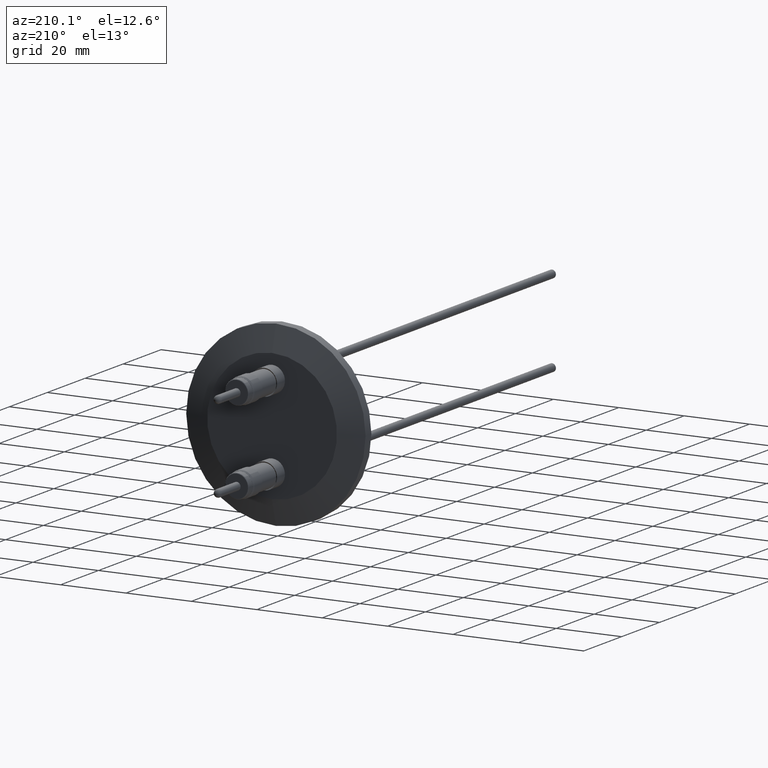
[diagram: clean part render]
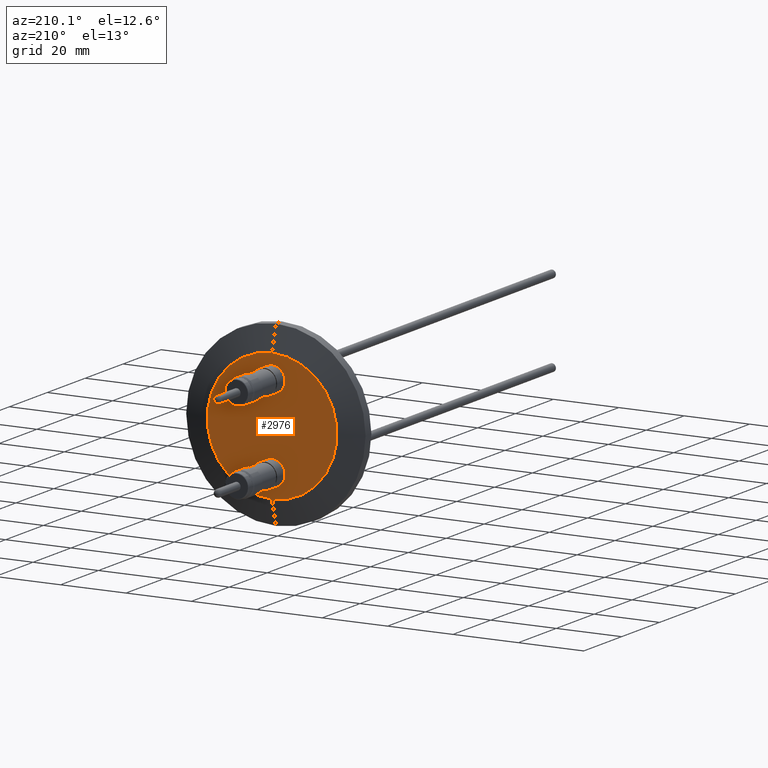
[diagram: same view with one face highlighted and labeled with its STEP entity id]
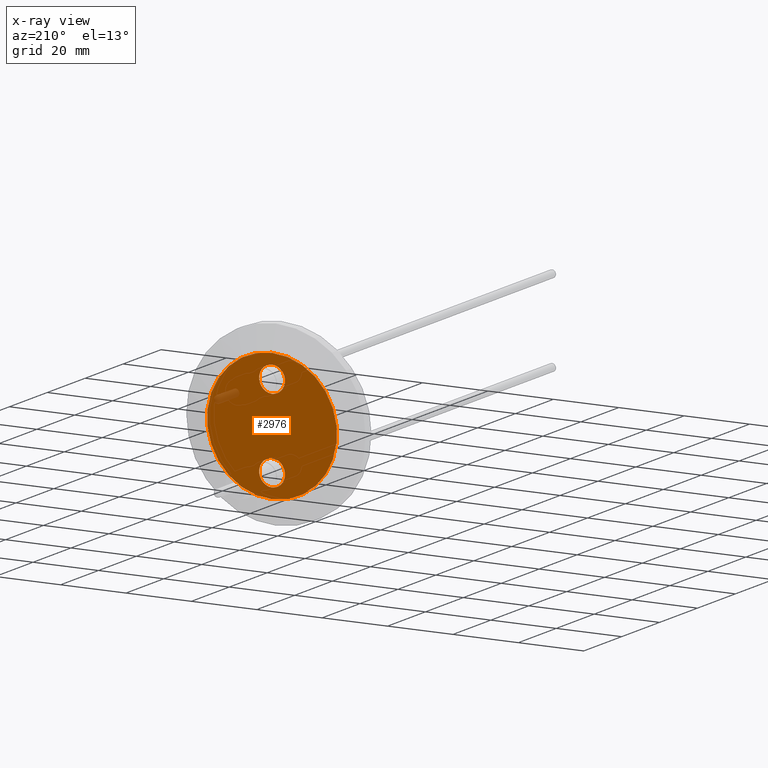
[diagram: x-ray of the same camera — body ghosted, the highlighted face saturated]
A machine part, auxiliary view. The second image highlights one B-rep face of the part: STEP entity #2976.
The next image is the same camera in x-ray: the body ghosted, the highlighted face saturated — about 2% of this face is hidden behind the body in this view.
In plain terms, the highlighted planar face has unit normal (-0, 1, 0).
Its self-contained STEP definition (entity closure, byte-faithful):
#1 = CARTESIAN_POINT ( 'NONE',  ( 1.139800780049361700E-016, -0.6727120255272258700, 0.7814359353944911900 ) ) ;
#3 = CARTESIAN_POINT ( 'NONE',  ( 0.0000000000000000000, -0.6727120255272258700, -0.7814359353944911900 ) ) ;
#168 = DIRECTION ( 'NONE',  ( -0.9303085813030180800, 0.0000000000000000000, -0.3667777849788148000 ) ) ;
#169 = DIRECTION ( 'NONE',  ( 2.958228394578794300E-031, 1.000000000000000000, 2.280301054154487300E-031 ) ) ;
#170 = CARTESIAN_POINT ( 'NONE',  ( -3.383006489371284500E-017, -0.6727120255272256400, 0.5000000000000000000 ) ) ;
#373 = EDGE_CURVE ( 'NONE', #1862, #1800, #491, .T. ) ;
#491 = CIRCLE ( 'NONE', #1053, 0.1554999999999998300 ) ;
#556 = EDGE_LOOP ( 'NONE', ( #2135, #2151 ) ) ;
#593 = VERTEX_POINT ( 'NONE', #3 ) ;
#595 = VERTEX_POINT ( 'NONE', #1 ) ;
#694 = DIRECTION ( 'NONE',  ( 0.0000000000000000000, 0.0000000000000000000, 1.000000000000000000 ) ) ;
#696 = CARTESIAN_POINT ( 'NONE',  ( 0.0000000000000000000, -0.6727120255272258700, 0.0000000000000000000 ) ) ;
#699 = DIRECTION ( 'NONE',  ( -0.0000000000000000000, 1.000000000000000000, -0.0000000000000000000 ) ) ;
#703 = DIRECTION ( 'NONE',  ( 2.958228394578794300E-031, 1.000000000000000000, 2.280301054154487300E-031 ) ) ;
#713 = DIRECTION ( 'NONE',  ( 0.9303085813030205200, 0.0000000000000000000, 0.3667777849788086400 ) ) ;
#714 = DIRECTION ( 'NONE',  ( -2.958228394578794300E-031, 1.000000000000000000, -2.280301054154487300E-031 ) ) ;
#715 = CARTESIAN_POINT ( 'NONE',  ( -3.457651273949420100E-015, -0.6727120255272256400, -0.5000000000000000000 ) ) ;
#716 = DIRECTION ( 'NONE',  ( -0.9303085813030180800, 0.0000000000000000000, -0.3667777849788148000 ) ) ;
#717 = CARTESIAN_POINT ( 'NONE',  ( -3.383006489371284500E-017, -0.6727120255272256400, 0.5000000000000000000 ) ) ;
#966 = AXIS2_PLACEMENT_3D ( 'NONE', #3101, #3100, #3098 ) ;
#1053 = AXIS2_PLACEMENT_3D ( 'NONE', #170, #169, #168 ) ;
#1210 = AXIS2_PLACEMENT_3D ( 'NONE', #2773, #2666, #2769 ) ;
#1248 = AXIS2_PLACEMENT_3D ( 'NONE', #1641, #1645, #1638 ) ;
#1395 = CIRCLE ( 'NONE', #2603, 0.1554999999999998300 ) ;
#1403 = CIRCLE ( 'NONE', #2598, 0.1554999999999998300 ) ;
#1405 = CIRCLE ( 'NONE', #2601, 0.7814359353944911900 ) ;
#1470 = FACE_BOUND ( 'NONE', #1859, .T. ) ;
#1471 = FACE_BOUND ( 'NONE', #556, .T. ) ;
#1486 = FACE_OUTER_BOUND ( 'NONE', #1949, .T. ) ;
#1504 = EDGE_CURVE ( 'NONE', #1849, #1907, #2890, .T. ) ;
#1638 = DIRECTION ( 'NONE',  ( 0.0000000000000000000, 0.0000000000000000000, 1.000000000000000000 ) ) ;
#1640 = PLANE ( 'NONE',  #1248 ) ;
#1641 = CARTESIAN_POINT ( 'NONE',  ( -0.7814359353944911900, -0.6727120255272256400, 0.0000000000000000000 ) ) ;
#1645 = DIRECTION ( 'NONE',  ( -0.0000000000000000000, 1.000000000000000000, 0.0000000000000000000 ) ) ;
#1759 = EDGE_CURVE ( 'NONE', #595, #593, #3094, .T. ) ;
#1800 = VERTEX_POINT ( 'NONE', #2792 ) ;
#1849 = VERTEX_POINT ( 'NONE', #2757 ) ;
#1859 = EDGE_LOOP ( 'NONE', ( #2170, #2171 ) ) ;
#1862 = VERTEX_POINT ( 'NONE', #2750 ) ;
#1907 = VERTEX_POINT ( 'NONE', #2711 ) ;
#1949 = EDGE_LOOP ( 'NONE', ( #2211, #2208 ) ) ;
#2135 = ORIENTED_EDGE ( 'NONE', *, *, #373, .F. ) ;
#2151 = ORIENTED_EDGE ( 'NONE', *, *, #3049, .F. ) ;
#2170 = ORIENTED_EDGE ( 'NONE', *, *, #1504, .F. ) ;
#2171 = ORIENTED_EDGE ( 'NONE', *, *, #3052, .F. ) ;
#2208 = ORIENTED_EDGE ( 'NONE', *, *, #1759, .T. ) ;
#2211 = ORIENTED_EDGE ( 'NONE', *, *, #3051, .T. ) ;
#2598 = AXIS2_PLACEMENT_3D ( 'NONE', #717, #703, #716 ) ;
#2601 = AXIS2_PLACEMENT_3D ( 'NONE', #696, #699, #694 ) ;
#2603 = AXIS2_PLACEMENT_3D ( 'NONE', #715, #714, #713 ) ;
#2666 = DIRECTION ( 'NONE',  ( -0.0000000000000000000, 1.000000000000000000, -0.0000000000000000000 ) ) ;
#2711 = CARTESIAN_POINT ( 'NONE',  ( -0.1446629843926229600, -0.6727120255272256400, -0.5570339455642047100 ) ) ;
#2750 = CARTESIAN_POINT ( 'NONE',  ( -0.1446629843926191800, -0.6727120255272256400, 0.4429660544357943400 ) ) ;
#2757 = CARTESIAN_POINT ( 'NONE',  ( 0.1446629843926160700, -0.6727120255272256400, -0.4429660544357952900 ) ) ;
#2769 = DIRECTION ( 'NONE',  ( 0.0000000000000000000, 0.0000000000000000000, 1.000000000000000000 ) ) ;
#2773 = CARTESIAN_POINT ( 'NONE',  ( 0.0000000000000000000, -0.6727120255272258700, 0.0000000000000000000 ) ) ;
#2792 = CARTESIAN_POINT ( 'NONE',  ( 0.1446629843926190400, -0.6727120255272256400, 0.5570339455642056000 ) ) ;
#2890 = CIRCLE ( 'NONE', #966, 0.1554999999999998300 ) ;
#2976 = ADVANCED_FACE ( 'NONE', ( #1471, #1486, #1470 ), #1640, .T. ) ;
#3049 = EDGE_CURVE ( 'NONE', #1800, #1862, #1403, .T. ) ;
#3051 = EDGE_CURVE ( 'NONE', #593, #595, #1405, .T. ) ;
#3052 = EDGE_CURVE ( 'NONE', #1907, #1849, #1395, .T. ) ;
#3094 = CIRCLE ( 'NONE', #1210, 0.7814359353944911900 ) ;
#3098 = DIRECTION ( 'NONE',  ( 0.9303085813030205200, 0.0000000000000000000, 0.3667777849788086400 ) ) ;
#3100 = DIRECTION ( 'NONE',  ( -2.958228394578794300E-031, 1.000000000000000000, -2.280301054154487300E-031 ) ) ;
#3101 = CARTESIAN_POINT ( 'NONE',  ( -3.457651273949420100E-015, -0.6727120255272256400, -0.5000000000000000000 ) ) ;